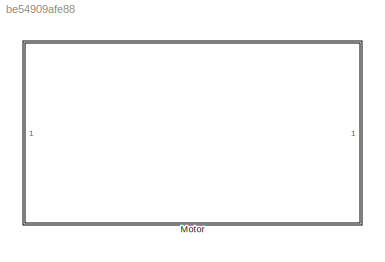
MODEL slx_be54909afe88
KIND model
CONFIG AbsTol = auto
CONFIG EnableMultiTasking = off
CONFIG FixedStep = auto
CONFIG MaxStep = auto
CONFIG MinStep = auto
CONFIG RelTol = 1e-3
CONFIG SampleTimeConstraint = Unconstrained
CONFIG Solver = VariableStepAuto
CONFIG SolverName = VariableStepAuto
CONFIG StartTime = 0.0
CONFIG StopTime = 10.0
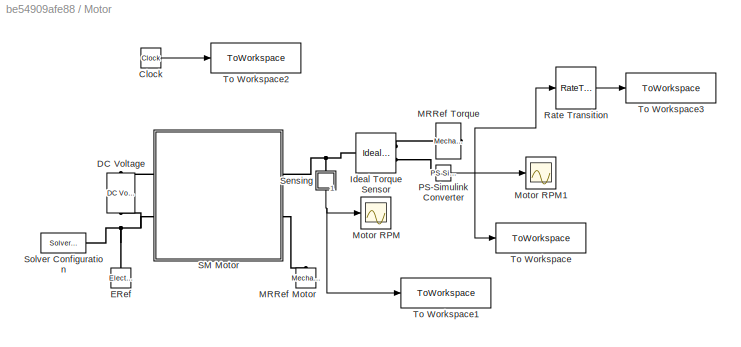
BLOCK [SubSystem] Motor
  Ports = []
  RequestExecContextInheritance = off
BLOCK [Clock] Motor/Clock
BLOCK [Reference] Motor/DC Voltage  REF=fl_lib/Electrical/Electrical Sources/DC Voltage Source
  Ports = [0, 0, 0, 0, 0, 1, 1]
  SourceBlock = fl_lib/Electrical/Electrical Sources/DC Voltage Source
  SourceProductBaseCode = SS
  SourceProductName = Simscape
  SourceType = DC Voltage Source
BLOCK [Reference] Motor/ERef  REF=fl_lib/Electrical/Electrical Elements/Electrical Reference
  Ports = [0, 0, 0, 0, 0, 1]
  SourceBlock = fl_lib/Electrical/Electrical Elements/Electrical Reference
  SourceProductBaseCode = SS
  SourceProductName = Simscape
  SourceType = Electrical Reference
BLOCK [Reference] Motor/Ideal Torque Sensor  REF=fl_lib/Mechanical/Mechanical Sensors/Ideal Torque Sensor
  Ports = [0, 0, 0, 0, 0, 1, 2]
  SourceBlock = fl_lib/Mechanical/Mechanical Sensors/Ideal Torque Sensor
  SourceProductBaseCode = SS
  SourceProductName = Simscape
  SourceType = Ideal Torque Sensor
BLOCK [Reference] Motor/MRRef Motor  REF=fl_lib/Mechanical/Rotational Elements/Mechanical
Rotational Reference
  Ports = [0, 0, 0, 0, 0, 1]
  SourceBlock = fl_lib/Mechanical/Rotational Elements/Mechanical\nRotational Reference
  SourceProductBaseCode = SS
  SourceProductName = Simscape
  SourceType = Mechanical\nRotational Reference
BLOCK [Reference] Motor/MRRef Torque  REF=fl_lib/Mechanical/Rotational Elements/Mechanical
Rotational Reference
  Ports = [0, 0, 0, 0, 0, 1]
  SourceBlock = fl_lib/Mechanical/Rotational Elements/Mechanical\nRotational Reference
  SourceProductBaseCode = SS
  SourceProductName = Simscape
  SourceType = Mechanical\nRotational Reference
BLOCK [Scope] Motor/Motor RPM
  Floating = off
  NumInputPorts = 1
  Ports = [1]
  ScopeSpecificationString = Simulink.scopes.TimeScopeBlockCfg('CurrentConfiguration', extmgr.ConfigurationSet(extmgr.Configuration('Core','General UI',true),extmgr.Configuration('Core','Source UI',true),extmgr.Configuration('Sources','WiredSimulink',true,'DataLoggingSaveFormat','StructureWithTime','DataLoggingLimitDataPoints',true,'DataLoggingDecimation','1','DataLoggingVariableName','ScopeData1'),extmgr.Configuration('Visua...<+1732ch>
BLOCK [Scope] Motor/Motor RPM1
  Floating = off
  NumInputPorts = 1
  Ports = [1]
  ScopeSpecificationString = Simulink.scopes.TimeScopeBlockCfg('CurrentConfiguration', extmgr.ConfigurationSet(extmgr.Configuration('Core','General UI',true),extmgr.Configuration('Core','Source UI',true),extmgr.Configuration('Sources','WiredSimulink',true,'DataLoggingSaveFormat','StructureWithTime','DataLoggingLimitDataPoints',true,'DataLoggingDecimation','1'),extmgr.Configuration('Visuals','Time Domain',true,'SerializedDispl...<+1695ch>
BLOCK [Reference] Motor/PS-Simulink Converter  REF=nesl_utility/PS-Simulink
Converter
  Ports = [0, 1, 0, 0, 0, 1]
  SourceBlock = nesl_utility/PS-Simulink\nConverter
  SourceProductBaseCode = SS
  SourceProductName = Simscape
  SourceType = PS-Simulink\nConverter
BLOCK [RateTransition] Motor/Rate Transition
  OutPortSampleTime = 1e-3
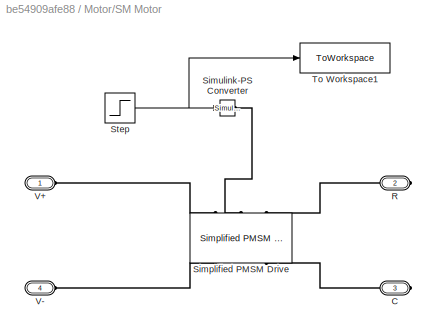
BLOCK [SubSystem] Motor/SM Motor
  Ports = [0, 0, 0, 0, 0, 2, 2]
  RequestExecContextInheritance = off
  Tag = PublishSubsystem
BLOCK [PMIOPort] Motor/SM Motor/C
  Port = 3
  Side = Right
BLOCK [PMIOPort] Motor/SM Motor/R
  Port = 2
  Side = Right
BLOCK [Reference] Motor/SM Motor/Simplified PMSM Drive  REF=ee_lib/Electromechanical/Permanent Magnet/Simplified PMSM
Drive
  Ports = [0, 0, 0, 0, 0, 3, 3]
  SourceBlock = ee_lib/Electromechanical/Permanent Magnet/Simplified PMSM\nDrive
  SourceProductBaseCode = PS
  SourceProductName = Simscape Electrical
  SourceType = Simplified PMSM\nDrive
BLOCK [Reference] Motor/SM Motor/Simulink-PS Converter  REF=nesl_utility/Simulink-PS
Converter
  Ports = [1, 0, 0, 0, 0, 0, 1]
  SourceBlock = nesl_utility/Simulink-PS\nConverter
  SourceProductBaseCode = SS
  SourceProductName = Simscape
  SourceType = Simulink-PS\nConverter
BLOCK [Step] Motor/SM Motor/Step
  SampleTime = 1
  Time = 50
BLOCK [ToWorkspace] Motor/SM Motor/To Workspace1
  FixptAsFi = on
  MaxDataPoints = inf
  Ports = [1]
  SampleTime = -1
  VariableName = desiredTorque
BLOCK [PMIOPort] Motor/SM Motor/V+
  Side = Left
BLOCK [PMIOPort] Motor/SM Motor/V-
  Port = 4
  Side = Left
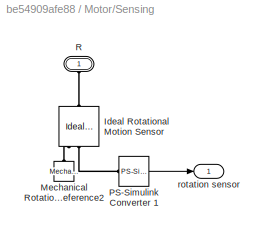
BLOCK [SubSystem] Motor/Sensing
  Ports = [0, 1, 0, 0, 0, 1]
  RequestExecContextInheritance = off
BLOCK [Reference] Motor/Sensing/Ideal Rotational Motion Sensor  REF=fl_lib/Mechanical/Mechanical Sensors/Ideal Rotational
Motion Sensor
  Ports = [0, 0, 0, 0, 0, 1, 3]
  SourceBlock = fl_lib/Mechanical/Mechanical Sensors/Ideal Rotational\nMotion Sensor
  SourceProductBaseCode = SS
  SourceProductName = Simscape
  SourceType = Ideal Rotational\nMotion Sensor
BLOCK [Reference] Motor/Sensing/Mechanical Rotational Reference2  REF=fl_lib/Mechanical/Rotational Elements/Mechanical
Rotational Reference
  Ports = [0, 0, 0, 0, 0, 1]
  SourceBlock = fl_lib/Mechanical/Rotational Elements/Mechanical\nRotational Reference
  SourceProductBaseCode = SS
  SourceProductName = Simscape
  SourceType = Mechanical\nRotational Reference
BLOCK [Reference] Motor/Sensing/PS-Simulink Converter 1  REF=nesl_utility/PS-Simulink
Converter
  Ports = [0, 1, 0, 0, 0, 1]
  SourceBlock = nesl_utility/PS-Simulink\nConverter
  SourceProductBaseCode = SS
  SourceProductName = Simscape
  SourceType = PS-Simulink\nConverter
BLOCK [PMIOPort] Motor/Sensing/R
  Side = Left
BLOCK [Outport] Motor/Sensing/rotation sensor 
  IconDisplay = Port number
  VectorParamsAs1DForOutWhenUnconnected = off
BLOCK [Reference] Motor/Solver Configuration  REF=nesl_utility/Solver
Configuration
  Ports = [0, 0, 0, 0, 0, 0, 1]
  SourceBlock = nesl_utility/Solver\nConfiguration
  SourceProductBaseCode = SS
  SourceProductName = Simscape
  SourceType = Solver\nConfiguration
BLOCK [ToWorkspace] Motor/To Workspace
  FixptAsFi = on
  MaxDataPoints = inf
  Ports = [1]
  SampleTime = -1
  SaveFormat = Structure With Time
  VariableName = torqueSensor
BLOCK [ToWorkspace] Motor/To Workspace1
  FixptAsFi = on
  MaxDataPoints = inf
  Ports = [1]
  SampleTime = -1
  VariableName = rotationSensor
BLOCK [ToWorkspace] Motor/To Workspace2
  FixptAsFi = on
  MaxDataPoints = inf
  Ports = [1]
  SampleTime = -1
  VariableName = time
BLOCK [ToWorkspace] Motor/To Workspace3
  FixptAsFi = on
  MaxDataPoints = inf
  Ports = [1]
  SampleTime = -1
  SaveFormat = Structure With Time
  VariableName = normalisedTorque
LINE Motor/Clock:1 -> Motor/To Workspace2:1
NET Motor/PS-Simulink Converter:1 -> Motor/Motor RPM1:1, Motor/Rate Transition:1, Motor/To Workspace:1
LINE Motor/Rate Transition:1 -> Motor/To Workspace3:1
NET Motor/SM Motor/Step:1 -> Motor/SM Motor/Simulink-PS Converter:1, Motor/SM Motor/To Workspace1:1
LINE Motor/Sensing/PS-Simulink Converter 1:1 -> Motor/Sensing/rotation sensor :1
NET Motor/Sensing:1 -> Motor/Motor RPM:1, Motor/To Workspace1:1
PLINE Motor/DC Voltage:LConn1 -- Motor/SM Motor:LConn1
PNET net1: Motor/DC Voltage:RConn1 -- Motor/ERef:LConn1 -- Motor/SM Motor:LConn2 -- Motor/Solver Configuration:RConn1
PNET net2: Motor/Ideal Torque Sensor:LConn1 -- Motor/SM Motor:RConn1 -- Motor/Sensing:LConn1
PLINE Motor/Ideal Torque Sensor:RConn1 -- Motor/MRRef Torque:LConn1
PLINE Motor/Ideal Torque Sensor:RConn2 -- Motor/PS-Simulink Converter:LConn1
PLINE Motor/MRRef Motor:LConn1 -- Motor/SM Motor:RConn2
PLINE Motor/SM Motor/C:RConn1 -- Motor/SM Motor/Simplified PMSM Drive:RConn3
PLINE Motor/SM Motor/R:RConn1 -- Motor/SM Motor/Simplified PMSM Drive:LConn3
PLINE Motor/SM Motor/Simplified PMSM Drive:LConn1 -- Motor/SM Motor/V+:RConn1
PLINE Motor/SM Motor/Simplified PMSM Drive:LConn2 -- Motor/SM Motor/Simulink-PS Converter:RConn1
PLINE Motor/SM Motor/Simplified PMSM Drive:RConn1 -- Motor/SM Motor/V-:RConn1
PLINE Motor/Sensing/Ideal Rotational Motion Sensor:LConn1 -- Motor/Sensing/R:RConn1
PLINE Motor/Sensing/Ideal Rotational Motion Sensor:RConn1 -- Motor/Sensing/Mechanical Rotational Reference2:LConn1
PLINE Motor/Sensing/Ideal Rotational Motion Sensor:RConn2 -- Motor/Sensing/PS-Simulink Converter 1:LConn1
note: NET lines group one-source signal fan-out (src -> all destinations, sorted); 1:1 wires keep LINE; PNET lines group multi-terminal physical nets as a canonical sorted terminal list (undirected conserving connections); 2-terminal nets keep the pairwise PLINE form
